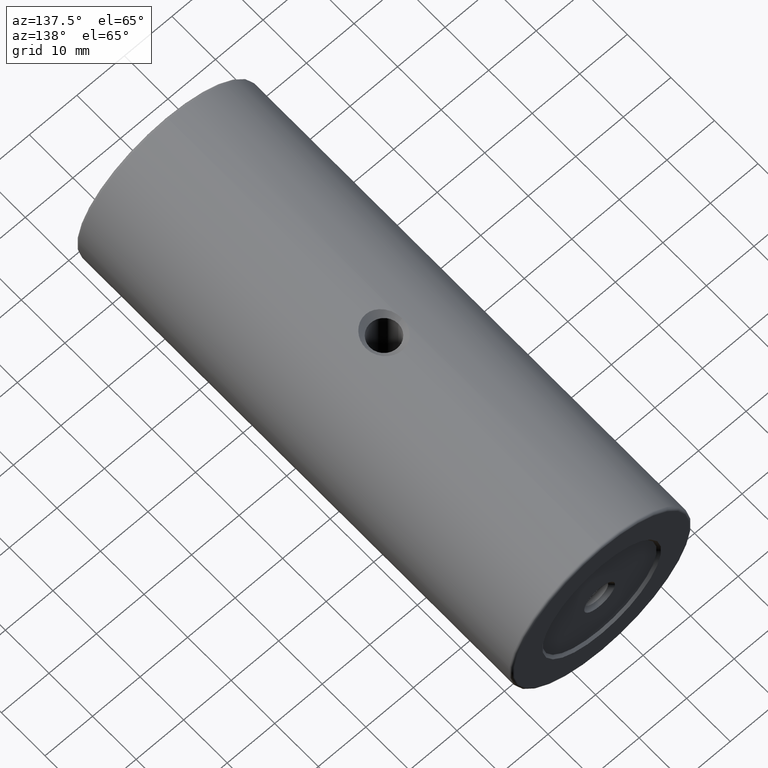
[diagram: clean part render]
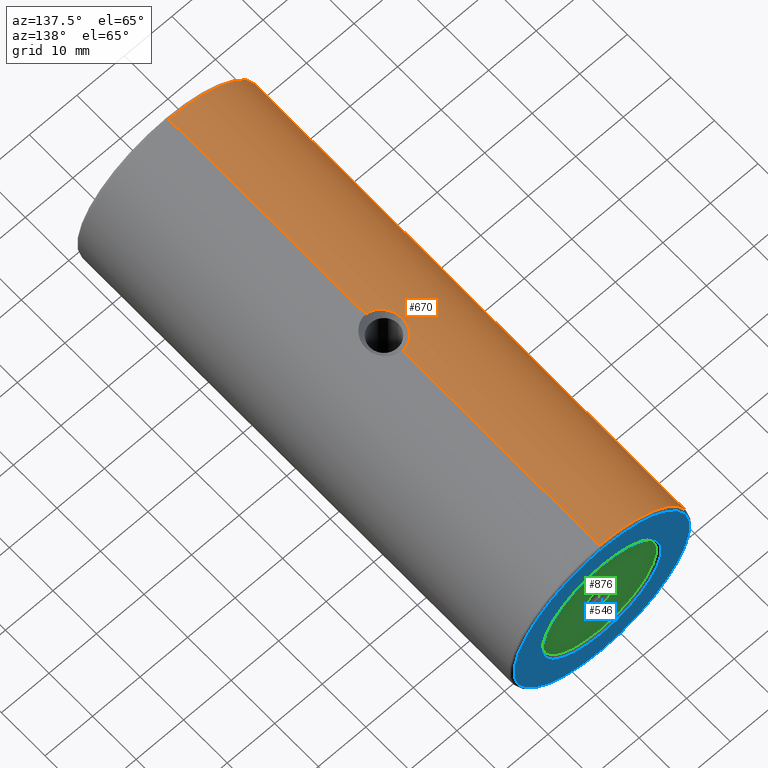
[diagram: same view with three faces highlighted in distinct colors, each labeled with its STEP entity id]
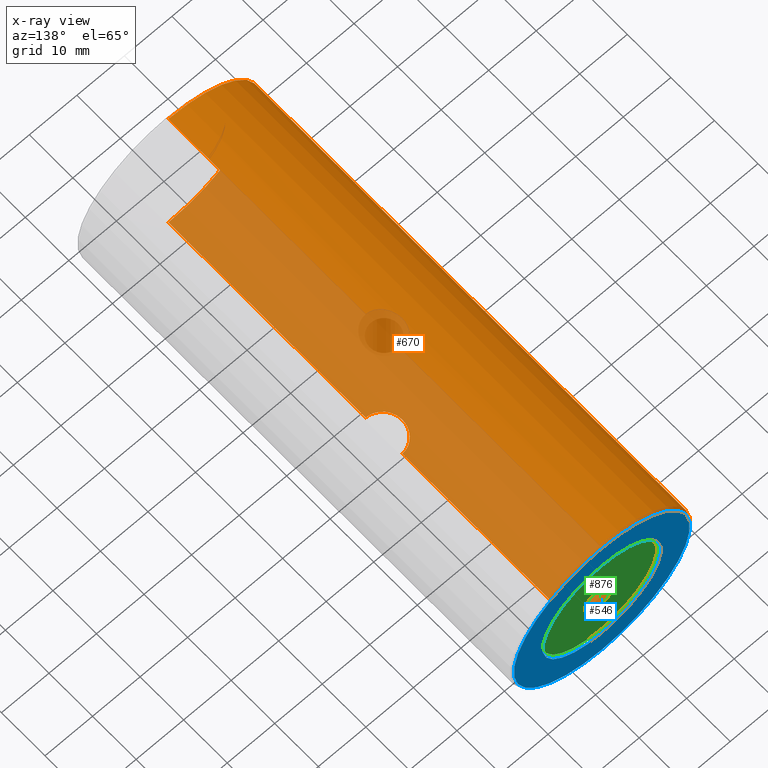
[diagram: x-ray of the same camera — body ghosted, the three highlighted faces saturated]
A machine part, auxiliary view with three faces highlighted in distinct colors.
The next image is the same camera in x-ray (body ghosted, the three faces saturated) — at least one of them is partly hidden behind the body in this view.
Their STEP definitions:

[orange] entity #670 — the highlighted cylindrical surface (partial cylindrical patch) has radius 19 mm, axis along (-0, -1, -0).
#7 = ORIENTED_EDGE ( 'NONE', *, *, #669, .F. ) ;
#8 = CARTESIAN_POINT ( 'NONE',  ( -85.49146371113677390, -8.461339991674272198, 419.0000000000001705 ) ) ;
#22 = DIRECTION ( 'NONE',  ( -0.0000000000000000000, -1.000000000000000000, -0.0000000000000000000 ) ) ;
#27 = CARTESIAN_POINT ( 'NONE',  ( -88.57188684336087192, -6.290580469037319489, 381.2963019886966549 ) ) ;
#34 = CARTESIAN_POINT ( 'NONE',  ( -85.22679983354142053, -0.06133999167429880772, 381.0000000000000000 ) ) ;
#37 = CARTESIAN_POINT ( 'NONE',  ( -89.04018469271751712, -3.999029654920558841, 418.6133848591761648 ) ) ;
#43 = CARTESIAN_POINT ( 'NONE',  ( -88.57090845425022962, -2.230408319438852871, 418.7038660641689489 ) ) ;
#55 = VECTOR ( 'NONE', #418, 1000.000000000000000 ) ;
#59 = CARTESIAN_POINT ( 'NONE',  ( -85.74900820764774778, -0.09101629208817690886, 418.9945733790917757 ) ) ;
#78 = CARTESIAN_POINT ( 'NONE',  ( -85.22679983354142053, -53.76133999167429067, 400.0000000000000000 ) ) ;
#89 = CARTESIAN_POINT ( 'NONE',  ( -88.30796467933343763, -6.745178320961991325, 418.7489826282481999 ) ) ;
#93 = CARTESIAN_POINT ( 'NONE',  ( -87.61973751830021229, -7.539048035020909921, 418.8498653824453868 ) ) ;
#94 = CARTESIAN_POINT ( 'NONE',  ( -85.22679983354142053, 45.73866000832571643, 419.0000000000000568 ) ) ;
#104 = CYLINDRICAL_SURFACE ( 'NONE', #1004, 19.00000000000001776 ) ;
#110 = CARTESIAN_POINT ( 'NONE',  ( -85.22679983354142053, 45.73866000832571643, 381.0000000000000000 ) ) ;
#114 = CARTESIAN_POINT ( 'NONE',  ( -87.21008987037792792, -0.6665384523181927534, 381.1026504008992788 ) ) ;
#125 = ORIENTED_EDGE ( 'NONE', *, *, #889, .T. ) ;
#126 = CARTESIAN_POINT ( 'NONE',  ( -86.98394057735728779, -0.5256534841595331686, 381.0799482386107115 ) ) ;
#128 = CARTESIAN_POINT ( 'NONE',  ( -85.22679983354142053, -53.76133999167429067, 381.0000000000000000 ) ) ;
#129 = VERTEX_POINT ( 'NONE', #723 ) ;
#133 = CARTESIAN_POINT ( 'NONE',  ( -86.51258600344370109, -0.2986253842693811777, 418.9579180337008211 ) ) ;
#140 = CARTESIAN_POINT ( 'NONE',  ( -88.86084895124396610, -2.964938769552044828, 418.6494481890263728 ) ) ;
#150 = B_SPLINE_CURVE_WITH_KNOTS ( 'NONE', 3,
 ( #963, #501, #657, #732, #804, #424, #27, #345, #744, #838, #680, #690, #527, #819, #444, #827, #900, #979 ),
 .UNSPECIFIED., .F., .F.,
 ( 4, 2, 2, 2, 2, 2, 2, 2, 4 ),
 ( 0.02262406464777516613, 0.02341192012650424731, 0.02419977560523332849, 0.02498763108396241314, 0.02577548656269149432, 0.02656334204142057551, 0.02735119752014966016, 0.02813905299887874134, 0.02892690847760782252 ),
 .UNSPECIFIED. ) ;
#167 = EDGE_LOOP ( 'NONE', ( #671, #950, #316, #125, #903, #217, #687, #252, #7, #871 ) ) ;
#170 = CARTESIAN_POINT ( 'NONE',  ( -86.98410511525524669, -7.996885633606630961, 418.9200298249307366 ) ) ;
#183 = CARTESIAN_POINT ( 'NONE',  ( -89.04018469271751712, -4.261339991674283567, 381.3866151408238920 ) ) ;
#185 = CARTESIAN_POINT ( 'NONE',  ( -86.51381476393198966, -8.223524199725767758, 418.9578280137350816 ) ) ;
#199 = CARTESIAN_POINT ( 'NONE',  ( -85.22679983354142053, -0.06133999167429880772, 419.0000000000000568 ) ) ;
#217 = ORIENTED_EDGE ( 'NONE', *, *, #799, .T. ) ;
#223 = CARTESIAN_POINT ( 'NONE',  ( -85.22679983354142053, 45.23866000832571643, 400.0000000000000000 ) ) ;
#227 = AXIS2_PLACEMENT_3D ( 'NONE', #223, #538, #240 ) ;
#240 = DIRECTION ( 'NONE',  ( 0.0000000000000000000, 0.0000000000000000000, 1.000000000000000000 ) ) ;
#242 = CIRCLE ( 'NONE', #379, 19.00000000000001776 ) ;
#243 = CARTESIAN_POINT ( 'NONE',  ( -87.81196888986544025, -7.356176429533654471, 418.8241028157862615 ) ) ;
#244 = VECTOR ( 'NONE', #743, 1000.000000000000000 ) ;
#252 = ORIENTED_EDGE ( 'NONE', *, *, #833, .F. ) ;
#256 = CARTESIAN_POINT ( 'NONE',  ( -89.04018469271750291, -4.524194045943173315, 418.6133848591762217 ) ) ;
#263 = LINE ( 'NONE', #110, #987 ) ;
#265 = B_SPLINE_CURVE_WITH_KNOTS ( 'NONE', 3,
 ( #199, #745, #59, #681, #133, #675, #834, #902, #532, #821, #839, #43, #523, #140, #609, #980, #37, #378 ),
 .UNSPECIFIED., .F., .F.,
 ( 4, 2, 2, 2, 2, 2, 2, 2, 4 ),
 ( 0.01633425834401431784, 0.01712048413198442517, 0.01790670991995452904, 0.01869293570792463638, 0.01947916149589474372, 0.02026538728386484758, 0.02105161307183495145, 0.02183783885980505879, 0.02262406464777516613 ),
 .UNSPECIFIED. ) ;
#266 = LINE ( 'NONE', #579, #859 ) ;
#270 = CARTESIAN_POINT ( 'NONE',  ( -88.86084895124396610, -2.964938769552044828, 381.3505518109733430 ) ) ;
#272 = LINE ( 'NONE', #94, #55 ) ;
#275 = EDGE_CURVE ( 'NONE', #447, #738, #976, .T. ) ;
#277 = CARTESIAN_POINT ( 'NONE',  ( -88.68258810927235913, -2.470732174027440387, 381.3166984144028220 ) ) ;
#295 = CARTESIAN_POINT ( 'NONE',  ( -85.22679983354142053, -53.76133999167429067, 419.0000000000000568 ) ) ;
#298 = VERTEX_POINT ( 'NONE', #619 ) ;
#316 = ORIENTED_EDGE ( 'NONE', *, *, #343, .T. ) ;
#321 = CARTESIAN_POINT ( 'NONE',  ( -88.57188684336087192, -6.290580469037319489, 418.7036980113034588 ) ) ;
#326 = CARTESIAN_POINT ( 'NONE',  ( -85.22679983354142053, 45.73866000832571643, 400.0000000000000000 ) ) ;
#343 = EDGE_CURVE ( 'NONE', #738, #298, #263, .T. ) ;
#345 = CARTESIAN_POINT ( 'NONE',  ( -88.30796467933343763, -6.745178320961991325, 381.2510173717518569 ) ) ;
#349 = CARTESIAN_POINT ( 'NONE',  ( -89.01727933074084831, -3.733366076984472315, 381.3818808132967320 ) ) ;
#355 = CARTESIAN_POINT ( 'NONE',  ( -87.81247192360183362, -1.166828721202192165, 381.1759550570734518 ) ) ;
#372 = CARTESIAN_POINT ( 'NONE',  ( -85.48903342595741606, -0.06133999167429705912, 380.9999999999999432 ) ) ;
#378 = CARTESIAN_POINT ( 'NONE',  ( -89.04018469271751712, -4.261339991674283567, 418.6133848591761648 ) ) ;
#379 = AXIS2_PLACEMENT_3D ( 'NONE', #78, #395, #627 ) ;
#393 = EDGE_CURVE ( 'NONE', #447, #653, #272, .T. ) ;
#395 = DIRECTION ( 'NONE',  ( 0.0000000000000000000, 1.000000000000000000, 0.0000000000000000000 ) ) ;
#404 = CARTESIAN_POINT ( 'NONE',  ( -86.26127162816044347, -8.313090059122508535, 418.9735347910690848 ) ) ;
#417 = CARTESIAN_POINT ( 'NONE',  ( -85.22679983354142053, -8.461339991674268646, 419.0000000000000568 ) ) ;
#418 = DIRECTION ( 'NONE',  ( -0.0000000000000000000, -1.000000000000000000, -0.0000000000000000000 ) ) ;
#423 = DIRECTION ( 'NONE',  ( -0.0000000000000000000, -1.000000000000000000, -0.0000000000000000000 ) ) ;
#424 = CARTESIAN_POINT ( 'NONE',  ( -88.68189959692058721, -6.053472744008438156, 381.3165713769054150 ) ) ;
#427 = FACE_OUTER_BOUND ( 'NONE', #167, .T. ) ;
#435 = VERTEX_POINT ( 'NONE', #183 ) ;
#437 = CARTESIAN_POINT ( 'NONE',  ( -85.22679983354142053, 45.73866000832571643, 419.0000000000000568 ) ) ;
#442 = CARTESIAN_POINT ( 'NONE',  ( -86.26440072079715549, -0.2103516366053766184, 381.0266000980727767 ) ) ;
#444 = CARTESIAN_POINT ( 'NONE',  ( -86.26127162816044347, -8.313090059122508535, 381.0264652089310289 ) ) ;
#445 = EDGE_CURVE ( 'NONE', #435, #129, #150, .T. ) ;
#447 = VERTEX_POINT ( 'NONE', #668 ) ;
#449 = CARTESIAN_POINT ( 'NONE',  ( -88.15730954550808462, -1.565196067254975176, 381.2265485059697880 ) ) ;
#457 = VERTEX_POINT ( 'NONE', #741 ) ;
#494 = VERTEX_POINT ( 'NONE', #128 ) ;
#501 = CARTESIAN_POINT ( 'NONE',  ( -89.04018469271750291, -4.524194045943173315, 381.3866151408239489 ) ) ;
#505 = DIRECTION ( 'NONE',  ( -0.0000000000000000000, -1.000000000000000000, -0.0000000000000000000 ) ) ;
#523 = CARTESIAN_POINT ( 'NONE',  ( -88.68258810927235913, -2.470732174027440387, 418.6833015855973485 ) ) ;
#527 = CARTESIAN_POINT ( 'NONE',  ( -86.98410511525524669, -7.996885633606630961, 381.0799701750693771 ) ) ;
#529 = VERTEX_POINT ( 'NONE', #685 ) ;
#530 = LINE ( 'NONE', #437, #244 ) ;
#532 = CARTESIAN_POINT ( 'NONE',  ( -87.81247192360183362, -1.166828721202192165, 418.8240449429266050 ) ) ;
#538 = DIRECTION ( 'NONE',  ( -0.0000000000000000000, -1.000000000000000000, -0.0000000000000000000 ) ) ;
#545 = VERTEX_POINT ( 'NONE', #295 ) ;
#563 = CARTESIAN_POINT ( 'NONE',  ( -88.15440500365676257, -6.961092752758728963, 418.7738934117829217 ) ) ;
#570 = CARTESIAN_POINT ( 'NONE',  ( -89.04018469271751712, -4.261339991674283567, 418.6133848591761648 ) ) ;
#579 = CARTESIAN_POINT ( 'NONE',  ( -85.22679983354142053, 45.73866000832571643, 381.0000000000000000 ) ) ;
#594 = CARTESIAN_POINT ( 'NONE',  ( -88.92749338337961262, -3.217524007279799481, 381.3638264625174088 ) ) ;
#609 = CARTESIAN_POINT ( 'NONE',  ( -88.92749338337961262, -3.217524007279799481, 418.6361735374826480 ) ) ;
#619 = CARTESIAN_POINT ( 'NONE',  ( -85.22679983354142053, -0.06133999167429880772, 381.0000000000000000 ) ) ;
#627 = DIRECTION ( 'NONE',  ( 0.0000000000000000000, 0.0000000000000000000, 1.000000000000000000 ) ) ;
#632 = CARTESIAN_POINT ( 'NONE',  ( -88.68189959692058721, -6.053472744008438156, 418.6834286230944713 ) ) ;
#639 = DIRECTION ( 'NONE',  ( 0.0000000000000000000, 0.0000000000000000000, -1.000000000000000000 ) ) ;
#644 = CARTESIAN_POINT ( 'NONE',  ( -85.22679983354142053, 45.23866000832571643, 381.0000000000000000 ) ) ;
#650 = EDGE_CURVE ( 'NONE', #494, #545, #242, .T. ) ;
#653 = VERTEX_POINT ( 'NONE', #877 ) ;
#657 = CARTESIAN_POINT ( 'NONE',  ( -89.01782207825233684, -4.784939022142112641, 381.3819915527722060 ) ) ;
#666 = CARTESIAN_POINT ( 'NONE',  ( -88.30889371447072733, -1.779107847670829301, 381.2511769563365078 ) ) ;
#668 = CARTESIAN_POINT ( 'NONE',  ( -85.22679983354142053, 45.23866000832571643, 419.0000000000000568 ) ) ;
#669 = EDGE_CURVE ( 'NONE', #529, #457, #880, .T. ) ;
#670 = ADVANCED_FACE ( 'NONE', ( #427 ), #104, .T. ) ;
#671 = ORIENTED_EDGE ( 'NONE', *, *, #393, .F. ) ;
#675 = CARTESIAN_POINT ( 'NONE',  ( -86.98394057735728779, -0.5256534841595331686, 418.9200517613895727 ) ) ;
#680 = CARTESIAN_POINT ( 'NONE',  ( -87.61973751830021229, -7.539048035020909921, 381.1501346175546701 ) ) ;
#681 = CARTESIAN_POINT ( 'NONE',  ( -86.26440072079715549, -0.2103516366053766184, 418.9733999019272801 ) ) ;
#683 = CARTESIAN_POINT ( 'NONE',  ( -88.57090845425022962, -2.230408319438852871, 381.2961339358312216 ) ) ;
#685 = CARTESIAN_POINT ( 'NONE',  ( -89.04018469271751712, -4.261339991674283567, 418.6133848591761648 ) ) ;
#687 = ORIENTED_EDGE ( 'NONE', *, *, #650, .T. ) ;
#690 = CARTESIAN_POINT ( 'NONE',  ( -87.20501299645449933, -7.859601616013272007, 381.1021099489511244 ) ) ;
#717 = CARTESIAN_POINT ( 'NONE',  ( -85.75119431850812646, -8.431120250548380213, 418.9944772180206769 ) ) ;
#723 = CARTESIAN_POINT ( 'NONE',  ( -85.22679983354142053, -8.461339991674268646, 381.0000000000000000 ) ) ;
#732 = CARTESIAN_POINT ( 'NONE',  ( -88.92822251687863400, -5.302205923223622719, 381.3639714981914040 ) ) ;
#738 = VERTEX_POINT ( 'NONE', #644 ) ;
#741 = CARTESIAN_POINT ( 'NONE',  ( -85.22679983354142053, -8.461339991674268646, 419.0000000000000568 ) ) ;
#743 = DIRECTION ( 'NONE',  ( -0.0000000000000000000, -1.000000000000000000, -0.0000000000000000000 ) ) ;
#744 = CARTESIAN_POINT ( 'NONE',  ( -88.15440500365676257, -6.961092752758728963, 381.2261065882171351 ) ) ;
#745 = CARTESIAN_POINT ( 'NONE',  ( -85.48903342595741606, -0.06133999167429705912, 419.0000000000001705 ) ) ;
#787 = CARTESIAN_POINT ( 'NONE',  ( -88.86003986455601478, -5.560364975193093251, 418.6496055284342788 ) ) ;
#799 = EDGE_CURVE ( 'NONE', #129, #494, #266, .T. ) ;
#804 = CARTESIAN_POINT ( 'NONE',  ( -88.86003986455601478, -5.560364975193093251, 381.3503944715658349 ) ) ;
#819 = CARTESIAN_POINT ( 'NONE',  ( -86.51381476393198966, -8.223524199725767758, 381.0421719862650889 ) ) ;
#821 = CARTESIAN_POINT ( 'NONE',  ( -88.15730954550808462, -1.565196067254975176, 418.7734514940302688 ) ) ;
#827 = CARTESIAN_POINT ( 'NONE',  ( -85.75119431850812646, -8.431120250548380213, 381.0055227819794936 ) ) ;
#830 = CARTESIAN_POINT ( 'NONE',  ( -87.62330431072487613, -0.9868626275845048257, 381.1505960961178516 ) ) ;
#833 = EDGE_CURVE ( 'NONE', #457, #545, #530, .T. ) ;
#834 = CARTESIAN_POINT ( 'NONE',  ( -87.21008987037792792, -0.6665384523181927534, 418.8973495991008917 ) ) ;
#838 = CARTESIAN_POINT ( 'NONE',  ( -87.81196888986544025, -7.356176429533654471, 381.1758971842136248 ) ) ;
#839 = CARTESIAN_POINT ( 'NONE',  ( -88.30889371447072733, -1.779107847670829301, 418.7488230436633785 ) ) ;
#859 = VECTOR ( 'NONE', #505, 1000.000000000000000 ) ;
#867 = CARTESIAN_POINT ( 'NONE',  ( -87.20501299645449933, -7.859601616013272007, 418.8978900510489325 ) ) ;
#871 = ORIENTED_EDGE ( 'NONE', *, *, #981, .F. ) ;
#877 = CARTESIAN_POINT ( 'NONE',  ( -85.22679983354142053, -0.06133999167429880772, 419.0000000000000568 ) ) ;
#880 = B_SPLINE_CURVE_WITH_KNOTS ( 'NONE', 3,
 ( #570, #256, #881, #940, #787, #632, #321, #89, #563, #243, #93, #867, #170, #185, #404, #717, #8, #417 ),
 .UNSPECIFIED., .F., .F.,
 ( 4, 2, 2, 2, 2, 2, 2, 2, 4 ),
 ( 0.02262406464777516613, 0.02341192012650424731, 0.02419977560523332849, 0.02498763108396241314, 0.02577548656269149432, 0.02656334204142057551, 0.02735119752014966016, 0.02813905299887874134, 0.02892690847760782252 ),
 .UNSPECIFIED. ) ;
#881 = CARTESIAN_POINT ( 'NONE',  ( -89.01782207825233684, -4.784939022142112641, 418.6180084472278509 ) ) ;
#889 = EDGE_CURVE ( 'NONE', #298, #435, #964, .T. ) ;
#900 = CARTESIAN_POINT ( 'NONE',  ( -85.49146371113677390, -8.461339991674272198, 381.0000000000000000 ) ) ;
#902 = CARTESIAN_POINT ( 'NONE',  ( -87.62330431072487613, -0.9868626275845048257, 418.8494039038823757 ) ) ;
#903 = ORIENTED_EDGE ( 'NONE', *, *, #445, .T. ) ;
#904 = CARTESIAN_POINT ( 'NONE',  ( -89.04018469271751712, -4.261339991674283567, 381.3866151408238920 ) ) ;
#940 = CARTESIAN_POINT ( 'NONE',  ( -88.92822251687863400, -5.302205923223622719, 418.6360285018084824 ) ) ;
#950 = ORIENTED_EDGE ( 'NONE', *, *, #275, .T. ) ;
#963 = CARTESIAN_POINT ( 'NONE',  ( -89.04018469271751712, -4.261339991674283567, 381.3866151408238920 ) ) ;
#964 = B_SPLINE_CURVE_WITH_KNOTS ( 'NONE', 3,
 ( #34, #372, #977, #442, #972, #126, #114, #830, #355, #449, #666, #683, #277, #270, #594, #349, #989, #904 ),
 .UNSPECIFIED., .F., .F.,
 ( 4, 2, 2, 2, 2, 2, 2, 2, 4 ),
 ( 0.01633425834401431784, 0.01712048413198442517, 0.01790670991995452904, 0.01869293570792463638, 0.01947916149589474372, 0.02026538728386484758, 0.02105161307183495145, 0.02183783885980505879, 0.02262406464777516613 ),
 .UNSPECIFIED. ) ;
#972 = CARTESIAN_POINT ( 'NONE',  ( -86.51258600344370109, -0.2986253842693811777, 381.0420819662991789 ) ) ;
#976 = CIRCLE ( 'NONE', #227, 19.00000000000001776 ) ;
#977 = CARTESIAN_POINT ( 'NONE',  ( -85.74900820764774778, -0.09101629208817690886, 381.0054266209082812 ) ) ;
#979 = CARTESIAN_POINT ( 'NONE',  ( -85.22679983354142053, -8.461339991674268646, 381.0000000000000000 ) ) ;
#980 = CARTESIAN_POINT ( 'NONE',  ( -89.01727933074084831, -3.733366076984472315, 418.6181191867033817 ) ) ;
#981 = EDGE_CURVE ( 'NONE', #653, #529, #265, .T. ) ;
#987 = VECTOR ( 'NONE', #22, 1000.000000000000000 ) ;
#989 = CARTESIAN_POINT ( 'NONE',  ( -89.04018469271751712, -3.999029654920558841, 381.3866151408238920 ) ) ;
#1004 = AXIS2_PLACEMENT_3D ( 'NONE', #326, #423, #639 ) ;

[blue] entity #546 — the highlighted planar face has unit normal (0, 1, 0).
#101 = VERTEX_POINT ( 'NONE', #315 ) ;
#102 = ORIENTED_EDGE ( 'NONE', *, *, #750, .F. ) ;
#105 = AXIS2_PLACEMENT_3D ( 'NONE', #174, #722, #406 ) ;
#116 = CARTESIAN_POINT ( 'NONE',  ( -85.22679983354142053, 45.73866000832571643, 387.5000000000000000 ) ) ;
#135 = EDGE_LOOP ( 'NONE', ( #573, #285 ) ) ;
#173 = DIRECTION ( 'NONE',  ( 0.0000000000000000000, 0.0000000000000000000, 1.000000000000000000 ) ) ;
#174 = CARTESIAN_POINT ( 'NONE',  ( -85.22679983354142053, 45.73866000832571643, 400.0000000000000000 ) ) ;
#182 = EDGE_CURVE ( 'NONE', #891, #416, #288, .T. ) ;
#285 = ORIENTED_EDGE ( 'NONE', *, *, #182, .T. ) ;
#288 = CIRCLE ( 'NONE', #470, 18.50000000000001776 ) ;
#314 = DIRECTION ( 'NONE',  ( 0.0000000000000000000, 0.0000000000000000000, 1.000000000000000000 ) ) ;
#315 = CARTESIAN_POINT ( 'NONE',  ( -85.22679983354142053, 45.73866000832571643, 412.5000000000000568 ) ) ;
#322 = CIRCLE ( 'NONE', #105, 18.50000000000001776 ) ;
#323 = DIRECTION ( 'NONE',  ( 0.0000000000000000000, 1.000000000000000000, 0.0000000000000000000 ) ) ;
#362 = FACE_OUTER_BOUND ( 'NONE', #135, .T. ) ;
#382 = EDGE_CURVE ( 'NONE', #416, #891, #322, .T. ) ;
#406 = DIRECTION ( 'NONE',  ( 0.0000000000000000000, 0.0000000000000000000, 1.000000000000000000 ) ) ;
#416 = VERTEX_POINT ( 'NONE', #571 ) ;
#438 = AXIS2_PLACEMENT_3D ( 'NONE', #872, #886, #173 ) ;
#470 = AXIS2_PLACEMENT_3D ( 'NONE', #784, #323, #314 ) ;
#495 = VERTEX_POINT ( 'NONE', #116 ) ;
#546 = ADVANCED_FACE ( 'NONE', ( #606, #362 ), #674, .T. ) ;
#571 = CARTESIAN_POINT ( 'NONE',  ( -85.22679983354142053, 45.73866000832571643, 418.5000000000000568 ) ) ;
#573 = ORIENTED_EDGE ( 'NONE', *, *, #382, .T. ) ;
#596 = CARTESIAN_POINT ( 'NONE',  ( -85.22679983354142053, 45.73866000832571643, 400.0000000000000000 ) ) ;
#606 = FACE_BOUND ( 'NONE', #658, .T. ) ;
#651 = DIRECTION ( 'NONE',  ( 0.0000000000000000000, 0.0000000000000000000, 1.000000000000000000 ) ) ;
#658 = EDGE_LOOP ( 'NONE', ( #102, #810 ) ) ;
#674 = PLANE ( 'NONE',  #734 ) ;
#703 = EDGE_CURVE ( 'NONE', #495, #101, #909, .T. ) ;
#722 = DIRECTION ( 'NONE',  ( 0.0000000000000000000, 1.000000000000000000, 0.0000000000000000000 ) ) ;
#731 = CARTESIAN_POINT ( 'NONE',  ( -85.22679983354142053, 45.73866000832571643, 400.0000000000000000 ) ) ;
#734 = AXIS2_PLACEMENT_3D ( 'NONE', #596, #905, #1005 ) ;
#750 = EDGE_CURVE ( 'NONE', #101, #495, #824, .T. ) ;
#784 = CARTESIAN_POINT ( 'NONE',  ( -85.22679983354142053, 45.73866000832571643, 400.0000000000000000 ) ) ;
#798 = DIRECTION ( 'NONE',  ( 0.0000000000000000000, 1.000000000000000000, 0.0000000000000000000 ) ) ;
#810 = ORIENTED_EDGE ( 'NONE', *, *, #703, .F. ) ;
#824 = CIRCLE ( 'NONE', #954, 12.50000000000001066 ) ;
#825 = CARTESIAN_POINT ( 'NONE',  ( -85.22679983354142053, 45.73866000832571643, 381.5000000000000000 ) ) ;
#872 = CARTESIAN_POINT ( 'NONE',  ( -85.22679983354142053, 45.73866000832571643, 400.0000000000000000 ) ) ;
#886 = DIRECTION ( 'NONE',  ( 0.0000000000000000000, 1.000000000000000000, 0.0000000000000000000 ) ) ;
#891 = VERTEX_POINT ( 'NONE', #825 ) ;
#905 = DIRECTION ( 'NONE',  ( 0.0000000000000000000, 1.000000000000000000, 0.0000000000000000000 ) ) ;
#909 = CIRCLE ( 'NONE', #438, 12.50000000000001066 ) ;
#954 = AXIS2_PLACEMENT_3D ( 'NONE', #731, #798, #651 ) ;
#1005 = DIRECTION ( 'NONE',  ( 0.0000000000000000000, -0.0000000000000000000, 1.000000000000000000 ) ) ;

[green] entity #876 — the highlighted planar face has unit normal (0, 1, 0).
#11 = EDGE_CURVE ( 'NONE', #400, #207, #354, .T. ) ;
#39 = FACE_OUTER_BOUND ( 'NONE', #665, .T. ) ;
#90 = CARTESIAN_POINT ( 'NONE',  ( -85.22679983354142053, 45.23866000832571643, 400.0000000000000000 ) ) ;
#145 = CARTESIAN_POINT ( 'NONE',  ( -85.22679983354142053, 45.23866000832571643, 400.0000000000000000 ) ) ;
#171 = CARTESIAN_POINT ( 'NONE',  ( -85.22679983354142053, 45.23866000832571643, 412.0000000000000568 ) ) ;
#207 = VERTEX_POINT ( 'NONE', #305 ) ;
#211 = ORIENTED_EDGE ( 'NONE', *, *, #11, .T. ) ;
#224 = DIRECTION ( 'NONE',  ( -0.0000000000000000000, -1.000000000000000000, -0.0000000000000000000 ) ) ;
#262 = ORIENTED_EDGE ( 'NONE', *, *, #335, .T. ) ;
#305 = CARTESIAN_POINT ( 'NONE',  ( -85.22679983354142053, 45.23866000832571643, 396.7500000000000568 ) ) ;
#312 = VERTEX_POINT ( 'NONE', #171 ) ;
#335 = EDGE_CURVE ( 'NONE', #312, #389, #374, .T. ) ;
#352 = DIRECTION ( 'NONE',  ( 0.0000000000000000000, 0.0000000000000000000, 1.000000000000000000 ) ) ;
#354 = CIRCLE ( 'NONE', #436, 3.249999999999975131 ) ;
#360 = DIRECTION ( 'NONE',  ( 0.0000000000000000000, 1.000000000000000000, 0.0000000000000000000 ) ) ;
#374 = CIRCLE ( 'NONE', #892, 12.00000000000001066 ) ;
#389 = VERTEX_POINT ( 'NONE', #662 ) ;
#390 = DIRECTION ( 'NONE',  ( 0.0000000000000000000, 0.0000000000000000000, 1.000000000000000000 ) ) ;
#394 = EDGE_LOOP ( 'NONE', ( #211, #676 ) ) ;
#400 = VERTEX_POINT ( 'NONE', #869 ) ;
#436 = AXIS2_PLACEMENT_3D ( 'NONE', #145, #224, #999 ) ;
#471 = DIRECTION ( 'NONE',  ( 0.0000000000000000000, 1.000000000000000000, 0.0000000000000000000 ) ) ;
#507 = DIRECTION ( 'NONE',  ( 0.0000000000000000000, 1.000000000000000000, 0.0000000000000000000 ) ) ;
#536 = DIRECTION ( 'NONE',  ( 0.0000000000000000000, 0.0000000000000000000, 1.000000000000000000 ) ) ;
#558 = AXIS2_PLACEMENT_3D ( 'NONE', #694, #471, #390 ) ;
#559 = CIRCLE ( 'NONE', #777, 3.249999999999975131 ) ;
#575 = EDGE_CURVE ( 'NONE', #389, #312, #762, .T. ) ;
#605 = FACE_BOUND ( 'NONE', #394, .T. ) ;
#662 = CARTESIAN_POINT ( 'NONE',  ( -85.22679983354142053, 45.23866000832571643, 388.0000000000000000 ) ) ;
#665 = EDGE_LOOP ( 'NONE', ( #262, #720 ) ) ;
#676 = ORIENTED_EDGE ( 'NONE', *, *, #1012, .T. ) ;
#678 = CARTESIAN_POINT ( 'NONE',  ( -85.22679983354142053, 45.23866000832571643, 400.0000000000000000 ) ) ;
#691 = AXIS2_PLACEMENT_3D ( 'NONE', #678, #360, #739 ) ;
#692 = DIRECTION ( 'NONE',  ( -0.0000000000000000000, -1.000000000000000000, -0.0000000000000000000 ) ) ;
#694 = CARTESIAN_POINT ( 'NONE',  ( -85.22679983354142053, 45.23866000832571643, 400.0000000000000000 ) ) ;
#720 = ORIENTED_EDGE ( 'NONE', *, *, #575, .T. ) ;
#739 = DIRECTION ( 'NONE',  ( 0.0000000000000000000, -0.0000000000000000000, 1.000000000000000000 ) ) ;
#762 = CIRCLE ( 'NONE', #558, 12.00000000000001066 ) ;
#777 = AXIS2_PLACEMENT_3D ( 'NONE', #922, #692, #536 ) ;
#814 = PLANE ( 'NONE',  #691 ) ;
#869 = CARTESIAN_POINT ( 'NONE',  ( -85.22679983354142053, 45.23866000832571643, 403.2500000000000000 ) ) ;
#876 = ADVANCED_FACE ( 'NONE', ( #605, #39 ), #814, .T. ) ;
#892 = AXIS2_PLACEMENT_3D ( 'NONE', #90, #507, #352 ) ;
#922 = CARTESIAN_POINT ( 'NONE',  ( -85.22679983354142053, 45.23866000832571643, 400.0000000000000000 ) ) ;
#999 = DIRECTION ( 'NONE',  ( 0.0000000000000000000, 0.0000000000000000000, 1.000000000000000000 ) ) ;
#1012 = EDGE_CURVE ( 'NONE', #207, #400, #559, .T. ) ;